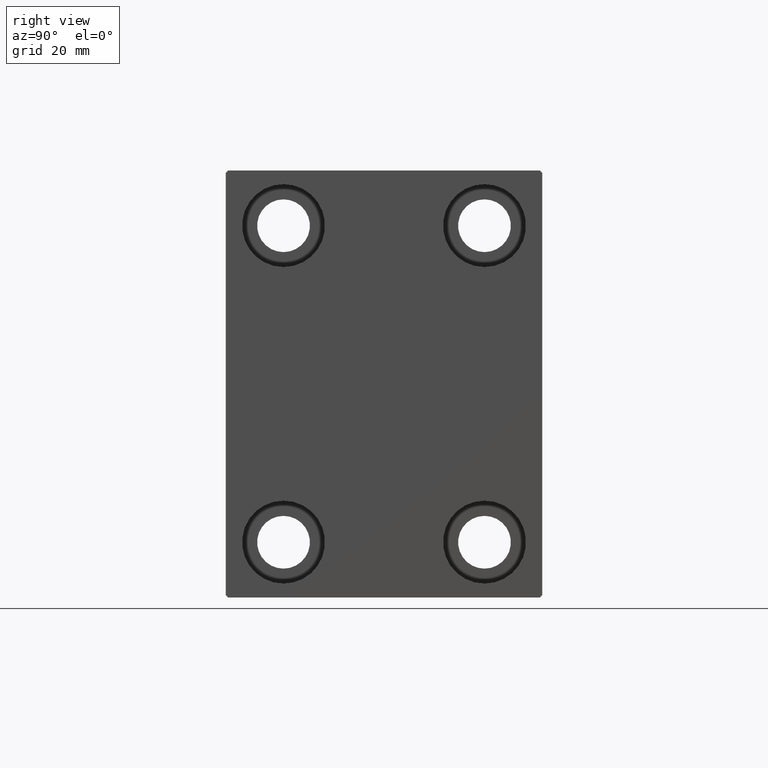
[diagram: clean part render]
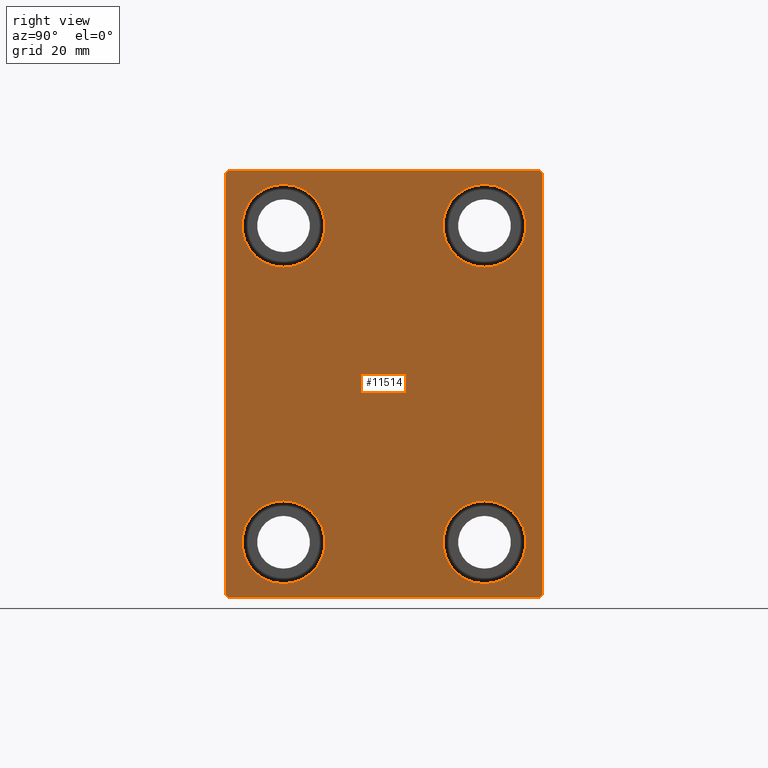
[diagram: same view with one face highlighted and labeled with its STEP entity id]
A machine part, right view. The second image highlights one B-rep face of the part: STEP entity #11514.
In plain terms, the highlighted planar face has unit normal (1, 0, 0).
Its self-contained STEP definition (entity closure, byte-faithful):
#407 = VECTOR ( 'NONE', #35617, 1000.000000000000000 ) ;
#546 = DIRECTION ( 'NONE',  ( 0.000000000000000000, -1.000000000000000000, -2.202823461557850341E-16 ) ) ;
#635 = EDGE_CURVE ( 'NONE', #42553, #4697, #39996, .T. ) ;
#651 = CARTESIAN_POINT ( 'NONE',  ( 88.00000000000000000, -31.00000000000001421, 42.49999999999999289 ) ) ;
#737 = VERTEX_POINT ( 'NONE', #21850 ) ;
#1128 = ORIENTED_EDGE ( 'NONE', *, *, #19955, .T. ) ;
#2591 = CARTESIAN_POINT ( 'NONE',  ( 88.00000000000000000, -31.50000000000000000, -42.00000000000002132 ) ) ;
#2955 = VERTEX_POINT ( 'NONE', #42509 ) ;
#2977 = DIRECTION ( 'NONE',  ( -1.000000000000000000, -0.000000000000000000, -0.000000000000000000 ) ) ;
#3466 = CARTESIAN_POINT ( 'NONE',  ( 88.00000000000000000, -19.99999999999999645, 39.74999999999999289 ) ) ;
#3540 = CIRCLE ( 'NONE', #27711, 8.249999999999992895 ) ;
#4188 = EDGE_CURVE ( 'NONE', #40313, #31930, #29849, .T. ) ;
#4697 = VERTEX_POINT ( 'NONE', #43937 ) ;
#5015 = CARTESIAN_POINT ( 'NONE',  ( 88.00000000000000000, -31.00000000000000000, -42.50000000000000711 ) ) ;
#5139 = AXIS2_PLACEMENT_3D ( 'NONE', #11365, #24945, #38500 ) ;
#5187 = CARTESIAN_POINT ( 'NONE',  ( 88.00000000000000000, -31.50000000000000000, 42.49999999999999289 ) ) ;
#5641 = ORIENTED_EDGE ( 'NONE', *, *, #9999, .T. ) ;
#5878 = EDGE_LOOP ( 'NONE', ( #27426, #26490 ) ) ;
#5952 = DIRECTION ( 'NONE',  ( 0.000000000000000000, -0.7071067811865378028, -0.7071067811865573427 ) ) ;
#6002 = CARTESIAN_POINT ( 'NONE',  ( 88.00000000000000000, -20.00000000000000355, -31.49999999999999289 ) ) ;
#6034 = EDGE_LOOP ( 'NONE', ( #39327, #13766 ) ) ;
#6095 = VERTEX_POINT ( 'NONE', #651 ) ;
#6148 = FACE_BOUND ( 'NONE', #6034, .T. ) ;
#6575 = DIRECTION ( 'NONE',  ( 1.000000000000000000, 0.000000000000000000, 0.000000000000000000 ) ) ;
#6722 = ORIENTED_EDGE ( 'NONE', *, *, #8452, .T. ) ;
#7027 = DIRECTION ( 'NONE',  ( 0.000000000000000000, 0.000000000000000000, 1.000000000000000000 ) ) ;
#7075 = ORIENTED_EDGE ( 'NONE', *, *, #34487, .T. ) ;
#7764 = CARTESIAN_POINT ( 'NONE',  ( 88.00000000000000000, 31.50000000000000000, 41.99999999999999289 ) ) ;
#8265 = DIRECTION ( 'NONE',  ( -1.000000000000000000, -0.000000000000000000, -0.000000000000000000 ) ) ;
#8452 = EDGE_CURVE ( 'NONE', #4697, #42553, #35708, .T. ) ;
#8492 = EDGE_CURVE ( 'NONE', #2955, #737, #36421, .T. ) ;
#8624 = CARTESIAN_POINT ( 'NONE',  ( 88.00000000000000000, 30.99999999999998579, 42.50000000000000711 ) ) ;
#8949 = EDGE_CURVE ( 'NONE', #16981, #22007, #42569, .T. ) ;
#9115 = AXIS2_PLACEMENT_3D ( 'NONE', #43409, #16059, #9366 ) ;
#9366 = DIRECTION ( 'NONE',  ( 0.000000000000000000, 0.000000000000000000, 1.000000000000000000 ) ) ;
#9440 = VECTOR ( 'NONE', #32133, 1000.000000000000000 ) ;
#9534 = VERTEX_POINT ( 'NONE', #14009 ) ;
#9890 = AXIS2_PLACEMENT_3D ( 'NONE', #39198, #8265, #15403 ) ;
#9922 = FACE_BOUND ( 'NONE', #14171, .T. ) ;
#9999 = EDGE_CURVE ( 'NONE', #20912, #6095, #38134, .T. ) ;
#10102 = CARTESIAN_POINT ( 'NONE',  ( 88.00000000000000000, -36.75000000000044054, 36.74999999999942446 ) ) ;
#10434 = DIRECTION ( 'NONE',  ( 0.000000000000000000, -1.632680918566406300E-16, 1.000000000000000000 ) ) ;
#10512 = CARTESIAN_POINT ( 'NONE',  ( 88.00000000000000000, -19.99999999999999645, 31.50000000000000000 ) ) ;
#10816 = ORIENTED_EDGE ( 'NONE', *, *, #22832, .T. ) ;
#11365 = CARTESIAN_POINT ( 'NONE',  ( 88.00000000000000000, -19.99999999999999645, 31.50000000000000000 ) ) ;
#11460 = CARTESIAN_POINT ( 'NONE',  ( 88.00000000000000000, -31.50000000000000000, -42.50000000000000711 ) ) ;
#11514 = ADVANCED_FACE ( 'NONE', ( #19733, #26621, #9922, #6148, #43100 ), #33318, .T. ) ;
#12645 = LINE ( 'NONE', #43560, #36080 ) ;
#13685 = ORIENTED_EDGE ( 'NONE', *, *, #635, .T. ) ;
#13766 = ORIENTED_EDGE ( 'NONE', *, *, #22633, .T. ) ;
#13872 = DIRECTION ( 'NONE',  ( 0.000000000000000000, 0.000000000000000000, 1.000000000000000000 ) ) ;
#14009 = CARTESIAN_POINT ( 'NONE',  ( 88.00000000000000000, 20.00000000000000355, 39.74999999999999289 ) ) ;
#14171 = EDGE_LOOP ( 'NONE', ( #1128, #35476 ) ) ;
#14660 = DIRECTION ( 'NONE',  ( -1.000000000000000000, -0.000000000000000000, -0.000000000000000000 ) ) ;
#15403 = DIRECTION ( 'NONE',  ( 0.000000000000000000, 0.000000000000000000, 1.000000000000000000 ) ) ;
#15602 = DIRECTION ( 'NONE',  ( 0.000000000000000000, 0.000000000000000000, 1.000000000000000000 ) ) ;
#15788 = ORIENTED_EDGE ( 'NONE', *, *, #39770, .T. ) ;
#16059 = DIRECTION ( 'NONE',  ( -1.000000000000000000, -0.000000000000000000, -0.000000000000000000 ) ) ;
#16220 = CARTESIAN_POINT ( 'NONE',  ( 88.00000000000000000, 20.00000000000000355, 31.50000000000000000 ) ) ;
#16981 = VERTEX_POINT ( 'NONE', #26117 ) ;
#17232 = AXIS2_PLACEMENT_3D ( 'NONE', #6002, #29838, #15602 ) ;
#17711 = CIRCLE ( 'NONE', #9890, 8.250000000000000000 ) ;
#18139 = LINE ( 'NONE', #11460, #43417 ) ;
#18223 = CARTESIAN_POINT ( 'NONE',  ( 88.00000000000000000, 36.74999999999999289, 36.74999999999999289 ) ) ;
#18441 = DIRECTION ( 'NONE',  ( -0.000000000000000000, -0.7071067811865474617, 0.7071067811865474617 ) ) ;
#18787 = EDGE_CURVE ( 'NONE', #22007, #18961, #42054, .T. ) ;
#18961 = VERTEX_POINT ( 'NONE', #5015 ) ;
#19084 = ORIENTED_EDGE ( 'NONE', *, *, #8949, .T. ) ;
#19170 = CARTESIAN_POINT ( 'NONE',  ( 88.00000000000000000, 31.50000000000001421, -42.00000000000000711 ) ) ;
#19733 = FACE_BOUND ( 'NONE', #5878, .T. ) ;
#19870 = VECTOR ( 'NONE', #5952, 1000.000000000000000 ) ;
#19955 = EDGE_CURVE ( 'NONE', #25632, #9534, #35958, .T. ) ;
#20837 = CARTESIAN_POINT ( 'NONE',  ( 88.00000000000000000, 20.00000000000000355, 31.50000000000000000 ) ) ;
#20912 = VERTEX_POINT ( 'NONE', #8624 ) ;
#21011 = CARTESIAN_POINT ( 'NONE',  ( 88.00000000000000000, 31.50000000000000000, 42.50000000000000711 ) ) ;
#21320 = EDGE_LOOP ( 'NONE', ( #5641, #7075, #19084, #32605, #23081, #10816, #35286, #15788 ) ) ;
#21529 = AXIS2_PLACEMENT_3D ( 'NONE', #10512, #2977, #13872 ) ;
#21850 = CARTESIAN_POINT ( 'NONE',  ( 88.00000000000000000, -20.00000000000000355, -23.24999999999999289 ) ) ;
#22007 = VERTEX_POINT ( 'NONE', #2591 ) ;
#22633 = EDGE_CURVE ( 'NONE', #737, #2955, #35347, .T. ) ;
#22832 = EDGE_CURVE ( 'NONE', #27815, #40313, #12645, .T. ) ;
#23081 = ORIENTED_EDGE ( 'NONE', *, *, #37227, .T. ) ;
#23103 = DIRECTION ( 'NONE',  ( -1.000000000000000000, -0.000000000000000000, -0.000000000000000000 ) ) ;
#23656 = VECTOR ( 'NONE', #546, 1000.000000000000000 ) ;
#23881 = AXIS2_PLACEMENT_3D ( 'NONE', #20837, #38181, #7027 ) ;
#24388 = CARTESIAN_POINT ( 'NONE',  ( 88.00000000000000000, 31.00000000000002842, -42.50000000000000711 ) ) ;
#24945 = DIRECTION ( 'NONE',  ( -1.000000000000000000, -0.000000000000000000, -0.000000000000000000 ) ) ;
#25547 = CARTESIAN_POINT ( 'NONE',  ( 88.00000000000000000, -20.00000000000000355, -31.49999999999999289 ) ) ;
#25632 = VERTEX_POINT ( 'NONE', #29678 ) ;
#25780 = DIRECTION ( 'NONE',  ( 0.000000000000000000, 0.000000000000000000, 1.000000000000000000 ) ) ;
#26117 = CARTESIAN_POINT ( 'NONE',  ( 88.00000000000000000, -31.50000000000000000, 41.99999999999999289 ) ) ;
#26212 = LINE ( 'NONE', #10102, #19870 ) ;
#26490 = ORIENTED_EDGE ( 'NONE', *, *, #30018, .T. ) ;
#26621 = FACE_BOUND ( 'NONE', #32203, .T. ) ;
#27426 = ORIENTED_EDGE ( 'NONE', *, *, #32345, .T. ) ;
#27711 = AXIS2_PLACEMENT_3D ( 'NONE', #16220, #23103, #25780 ) ;
#27815 = VERTEX_POINT ( 'NONE', #24388 ) ;
#28982 = AXIS2_PLACEMENT_3D ( 'NONE', #25547, #14660, #38890 ) ;
#29142 = LINE ( 'NONE', #18223, #29988 ) ;
#29324 = DIRECTION ( 'NONE',  ( 0.000000000000000000, 0.000000000000000000, -1.000000000000000000 ) ) ;
#29591 = CARTESIAN_POINT ( 'NONE',  ( 88.00000000000000000, 19.99999999999999645, -39.74999999999999289 ) ) ;
#29678 = CARTESIAN_POINT ( 'NONE',  ( 88.00000000000000000, 20.00000000000000355, 23.25000000000000355 ) ) ;
#29838 = DIRECTION ( 'NONE',  ( -1.000000000000000000, -0.000000000000000000, -0.000000000000000000 ) ) ;
#29849 = LINE ( 'NONE', #36716, #34441 ) ;
#29976 = CARTESIAN_POINT ( 'NONE',  ( 88.00000000000000000, 0.000000000000000000, 0.000000000000000000 ) ) ;
#29988 = VECTOR ( 'NONE', #18441, 1000.000000000000114 ) ;
#30018 = EDGE_CURVE ( 'NONE', #34903, #32696, #41781, .T. ) ;
#31214 = CARTESIAN_POINT ( 'NONE',  ( 88.00000000000000000, 19.99999999999999645, -23.24999999999999289 ) ) ;
#31930 = VERTEX_POINT ( 'NONE', #7764 ) ;
#32064 = CARTESIAN_POINT ( 'NONE',  ( 88.00000000000000000, -36.74999999999958078, -36.75000000000059686 ) ) ;
#32133 = DIRECTION ( 'NONE',  ( 0.000000000000000000, 0.000000000000000000, -1.000000000000000000 ) ) ;
#32203 = EDGE_LOOP ( 'NONE', ( #6722, #13685 ) ) ;
#32345 = EDGE_CURVE ( 'NONE', #32696, #34903, #17711, .T. ) ;
#32605 = ORIENTED_EDGE ( 'NONE', *, *, #18787, .T. ) ;
#32696 = VERTEX_POINT ( 'NONE', #29591 ) ;
#33126 = DIRECTION ( 'NONE',  ( -0.000000000000000000, 0.7071067811865378028, 0.7071067811865573427 ) ) ;
#33318 = PLANE ( 'NONE',  #42172 ) ;
#34441 = VECTOR ( 'NONE', #10434, 1000.000000000000000 ) ;
#34487 = EDGE_CURVE ( 'NONE', #6095, #16981, #26212, .T. ) ;
#34903 = VERTEX_POINT ( 'NONE', #31214 ) ;
#35286 = ORIENTED_EDGE ( 'NONE', *, *, #4188, .T. ) ;
#35347 = CIRCLE ( 'NONE', #28982, 8.250000000000000000 ) ;
#35404 = EDGE_CURVE ( 'NONE', #9534, #25632, #3540, .T. ) ;
#35476 = ORIENTED_EDGE ( 'NONE', *, *, #35404, .T. ) ;
#35617 = DIRECTION ( 'NONE',  ( -0.000000000000000000, 0.7071067811865573427, -0.7071067811865378028 ) ) ;
#35708 = CIRCLE ( 'NONE', #5139, 8.249999999999992895 ) ;
#35958 = CIRCLE ( 'NONE', #23881, 8.249999999999992895 ) ;
#36080 = VECTOR ( 'NONE', #33126, 1000.000000000000000 ) ;
#36421 = CIRCLE ( 'NONE', #17232, 8.250000000000000000 ) ;
#36716 = CARTESIAN_POINT ( 'NONE',  ( 88.00000000000000000, 31.50000000000001421, -42.50000000000000711 ) ) ;
#37227 = EDGE_CURVE ( 'NONE', #18961, #27815, #18139, .T. ) ;
#38134 = LINE ( 'NONE', #21011, #23656 ) ;
#38181 = DIRECTION ( 'NONE',  ( -1.000000000000000000, -0.000000000000000000, -0.000000000000000000 ) ) ;
#38500 = DIRECTION ( 'NONE',  ( 0.000000000000000000, 0.000000000000000000, 1.000000000000000000 ) ) ;
#38890 = DIRECTION ( 'NONE',  ( 0.000000000000000000, 0.000000000000000000, 1.000000000000000000 ) ) ;
#39041 = DIRECTION ( 'NONE',  ( 0.000000000000000000, 1.000000000000000000, 0.000000000000000000 ) ) ;
#39198 = CARTESIAN_POINT ( 'NONE',  ( 88.00000000000000000, 19.99999999999999645, -31.49999999999999289 ) ) ;
#39327 = ORIENTED_EDGE ( 'NONE', *, *, #8492, .T. ) ;
#39770 = EDGE_CURVE ( 'NONE', #31930, #20912, #29142, .T. ) ;
#39996 = CIRCLE ( 'NONE', #21529, 8.249999999999992895 ) ;
#40313 = VERTEX_POINT ( 'NONE', #19170 ) ;
#41781 = CIRCLE ( 'NONE', #9115, 8.250000000000000000 ) ;
#42054 = LINE ( 'NONE', #32064, #407 ) ;
#42172 = AXIS2_PLACEMENT_3D ( 'NONE', #29976, #6575, #29324 ) ;
#42509 = CARTESIAN_POINT ( 'NONE',  ( 88.00000000000000000, -20.00000000000000355, -39.74999999999999289 ) ) ;
#42553 = VERTEX_POINT ( 'NONE', #3466 ) ;
#42569 = LINE ( 'NONE', #5187, #9440 ) ;
#43100 = FACE_OUTER_BOUND ( 'NONE', #21320, .T. ) ;
#43409 = CARTESIAN_POINT ( 'NONE',  ( 88.00000000000000000, 19.99999999999999645, -31.49999999999999289 ) ) ;
#43417 = VECTOR ( 'NONE', #39041, 1000.000000000000000 ) ;
#43560 = CARTESIAN_POINT ( 'NONE',  ( 88.00000000000000000, 36.75000000000045475, -36.74999999999943867 ) ) ;
#43937 = CARTESIAN_POINT ( 'NONE',  ( 88.00000000000000000, -19.99999999999999645, 23.25000000000000355 ) ) ;